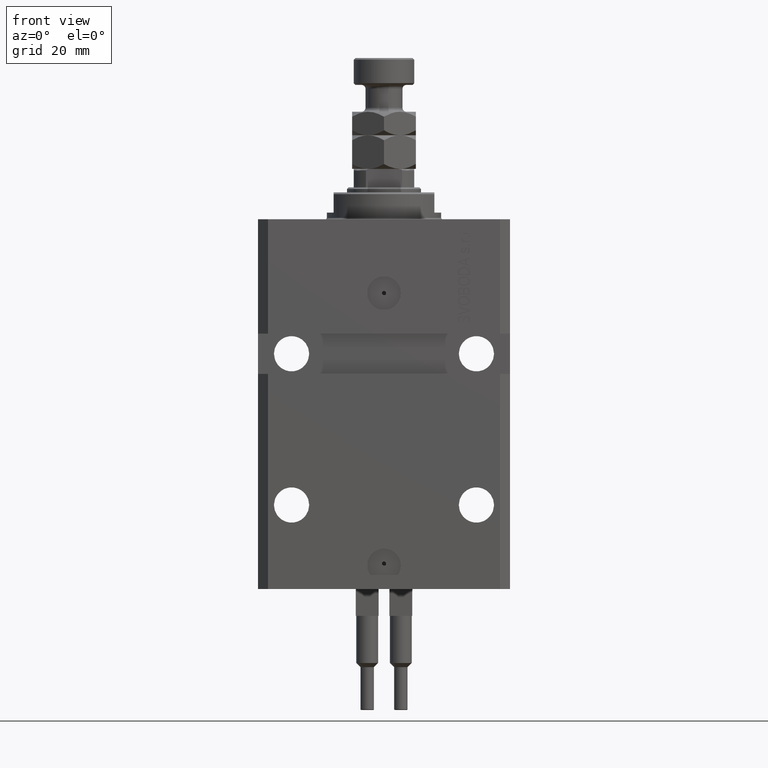
[diagram: clean part render]
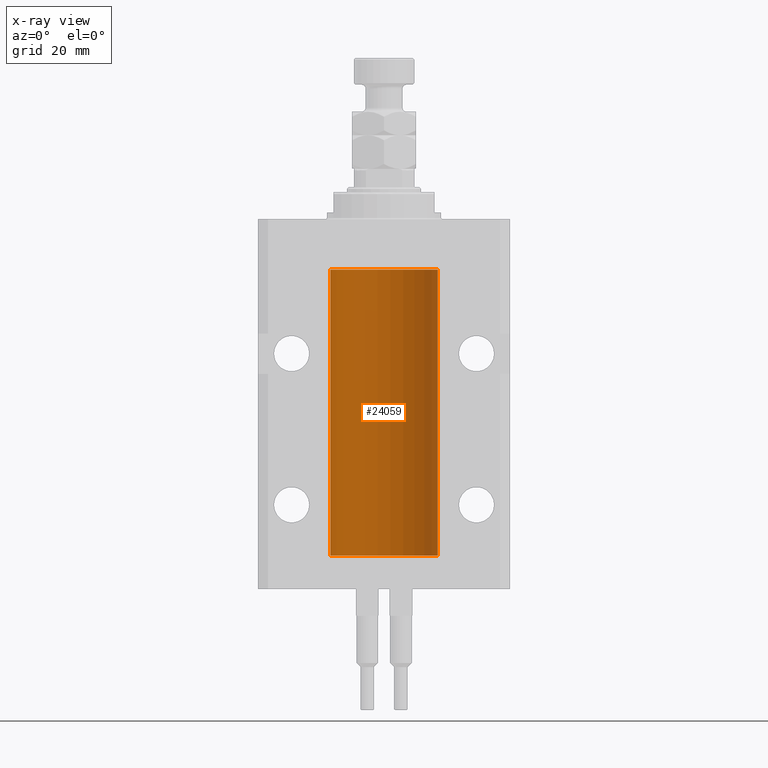
[diagram: x-ray — body ghosted, one internal face saturated and labeled with its STEP entity id]
A machine part, front view, then the same camera in x-ray: the body is ghosted and one INTERNAL B-rep face — a face not visible from any outside direction — is saturated and labeled: STEP entity #24059.
In plain terms, the highlighted cylindrical surface (partial cylindrical patch) has radius 16 mm, axis along (0, 0, 1).
Its self-contained STEP definition (entity closure, byte-faithful):
#160 = VECTOR ( 'NONE', #40299, 1000.000000000000000 ) ;
#316 = VERTEX_POINT ( 'NONE', #37630 ) ;
#538 = CARTESIAN_POINT ( 'NONE',  ( 15.98778830858101152, 0.6250000000001202372, -22.16311639173018477 ) ) ;
#617 = CARTESIAN_POINT ( 'NONE',  ( 15.98778830858104172, 0.6249999999996183053, -21.91847885046212951 ) ) ;
#1131 = LINE ( 'NONE', #4665, #48720 ) ;
#1495 = CARTESIAN_POINT ( 'NONE',  ( 16.00000000000000000, 0.000000000000000000, -100.0999999999999943 ) ) ;
#1811 = CARTESIAN_POINT ( 'NONE',  ( 16.00000000000000000, 0.000000000000000000, -15.00000000000000000 ) ) ;
#1982 = CARTESIAN_POINT ( 'NONE',  ( 16.00000000000000000, 0.000000000000000000, -100.0999999999999943 ) ) ;
#2264 = DIRECTION ( 'NONE',  ( 1.000000000000000000, 0.000000000000000000, 0.000000000000000000 ) ) ;
#2488 = CARTESIAN_POINT ( 'NONE',  ( 15.98778830858101685, 0.6250000000002223777, -98.16311639173024162 ) ) ;
#3416 = CARTESIAN_POINT ( 'NONE',  ( 15.99228275317787507, 0.5002975944204003378, -21.61642014570181303 ) ) ;
#3580 = B_SPLINE_CURVE_WITH_KNOTS ( 'NONE', 3,
 ( #46256, #617, #8193, #11476, #3416, #41992, #15246, #18771 ),
 .UNSPECIFIED., .F., .F.,
 ( 4, 2, 2, 4 ),
 ( 0.0009773326288699671956, 0.001221554802188560499, 0.001465776975507153803, 0.001954221322144333254 ),
 .UNSPECIFIED. ) ;
#4228 = ORIENTED_EDGE ( 'NONE', *, *, #39590, .F. ) ;
#4328 = CARTESIAN_POINT ( 'NONE',  ( 15.99548458234361803, 0.3844468804815583396, -22.49947786696350960 ) ) ;
#4368 = DIRECTION ( 'NONE',  ( 0.000000000000000000, 0.000000000000000000, 1.000000000000000000 ) ) ;
#4665 = CARTESIAN_POINT ( 'NONE',  ( -16.00000000000000000, 1.959434878635765131E-15, -100.0999999999999943 ) ) ;
#4689 = EDGE_CURVE ( 'NONE', #15457, #16218, #3580, .T. ) ;
#5217 = VERTEX_POINT ( 'NONE', #33536 ) ;
#5315 = CARTESIAN_POINT ( 'NONE',  ( 15.99934183755191341, 0.1636877470526788836, -22.60872690654067796 ) ) ;
#6029 = CARTESIAN_POINT ( 'NONE',  ( 15.99707608081895138, 0.3151028052310259620, -98.54594170697734512 ) ) ;
#6277 = CARTESIAN_POINT ( 'NONE',  ( 15.99934183755190986, 0.1636877470527013101, -98.60872690654072414 ) ) ;
#7011 = CARTESIAN_POINT ( 'NONE',  ( 15.99711856062700477, 0.3252985083514284281, -97.44140297987712529 ) ) ;
#7179 = AXIS2_PLACEMENT_3D ( 'NONE', #38919, #4368, #11680 ) ;
#7263 = CARTESIAN_POINT ( 'NONE',  ( 15.99228275317786441, 0.5002975944204781644, -97.61642014570176684 ) ) ;
#7792 = CARTESIAN_POINT ( 'NONE',  ( 16.00000000000000000, -1.835653844722709729E-15, -98.62500000000000000 ) ) ;
#8193 = CARTESIAN_POINT ( 'NONE',  ( 15.98844460043492077, 0.6087869699336542206, -21.83657454967558564 ) ) ;
#8298 = CARTESIAN_POINT ( 'NONE',  ( 0.000000000000000000, 0.000000000000000000, -15.00000000000000000 ) ) ;
#8513 = VECTOR ( 'NONE', #46222, 1000.000000000000000 ) ;
#9250 = CARTESIAN_POINT ( 'NONE',  ( 15.98778830858070954, 0.6250000000079481977, -21.99999999999914735 ) ) ;
#9977 = EDGE_CURVE ( 'NONE', #12073, #15457, #11652, .T. ) ;
#10064 = CARTESIAN_POINT ( 'NONE',  ( 15.98778830858070954, 0.6250000000080517815, -97.99999999999916156 ) ) ;
#10678 = VECTOR ( 'NONE', #39337, 1000.000000000000000 ) ;
#11476 = CARTESIAN_POINT ( 'NONE',  ( 15.99070695999104252, 0.5461439696926362330, -21.68526802364053552 ) ) ;
#11652 = B_SPLINE_CURVE_WITH_KNOTS ( 'NONE', 3,
 ( #39865, #31278, #5315, #20663, #4328, #35067, #538, #15910 ),
 .UNSPECIFIED., .F., .F.,
 ( 4, 2, 2, 4 ),
 ( 1.864948331951035013E-18, 0.0002443331572174913110, 0.0004886663144349807789, 0.0009773326288699671956 ),
 .UNSPECIFIED. ) ;
#11680 = DIRECTION ( 'NONE',  ( 1.000000000000000000, 0.000000000000000000, 0.000000000000000000 ) ) ;
#12073 = VERTEX_POINT ( 'NONE', #12500 ) ;
#12357 = CARTESIAN_POINT ( 'NONE',  ( 16.00000000000013145, 3.665532680419208314E-13, -21.37499999999658229 ) ) ;
#12371 = AXIS2_PLACEMENT_3D ( 'NONE', #14859, #30216, #2264 ) ;
#12500 = CARTESIAN_POINT ( 'NONE',  ( 16.00000000000000000, -7.378931128587136680E-16, -22.62500000000000000 ) ) ;
#13588 = CARTESIAN_POINT ( 'NONE',  ( 15.99548458234361448, 0.3844468804816183471, -98.49947786696355934 ) ) ;
#13872 = EDGE_CURVE ( 'NONE', #16218, #26678, #15669, .T. ) ;
#14076 = CARTESIAN_POINT ( 'NONE',  ( 16.00000000000013145, 3.665532692826917502E-13, -97.37499999999657518 ) ) ;
#14549 = B_SPLINE_CURVE_WITH_KNOTS ( 'NONE', 3,
 ( #30185, #17853, #33470, #33979, #7263, #7011, #22611, #14076 ),
 .UNSPECIFIED., .F., .F.,
 ( 4, 2, 2, 4 ),
 ( 0.0009773326288700682433, 0.001221554802188685399, 0.001465776975507302772, 0.001954221322144537518 ),
 .UNSPECIFIED. ) ;
#14859 = CARTESIAN_POINT ( 'NONE',  ( 0.000000000000000000, 0.000000000000000000, -100.0999999999999943 ) ) ;
#15189 = ORIENTED_EDGE ( 'NONE', *, *, #22297, .T. ) ;
#15246 = CARTESIAN_POINT ( 'NONE',  ( 15.99999999999999289, 0.1631343969470014366, -21.37500000000020606 ) ) ;
#15457 = VERTEX_POINT ( 'NONE', #9250 ) ;
#15669 = LINE ( 'NONE', #1982, #160 ) ;
#15910 = CARTESIAN_POINT ( 'NONE',  ( 15.98778830858070954, 0.6250000000079481977, -21.99999999999914735 ) ) ;
#16218 = VERTEX_POINT ( 'NONE', #12357 ) ;
#17853 = CARTESIAN_POINT ( 'NONE',  ( 15.98778830858103817, 0.6249999999997223332, -97.91847885046210820 ) ) ;
#18060 = CARTESIAN_POINT ( 'NONE',  ( 15.98778830858070954, 0.6250000000080517815, -97.99999999999916156 ) ) ;
#18739 = LINE ( 'NONE', #30331, #8513 ) ;
#18771 = CARTESIAN_POINT ( 'NONE',  ( 16.00000000000013145, 3.665532680419208314E-13, -21.37499999999658229 ) ) ;
#19781 = ORIENTED_EDGE ( 'NONE', *, *, #29254, .T. ) ;
#20468 = ORIENTED_EDGE ( 'NONE', *, *, #27197, .F. ) ;
#20663 = CARTESIAN_POINT ( 'NONE',  ( 15.99707608081895494, 0.3151028052309814975, -22.54594170697728117 ) ) ;
#21460 = ORIENTED_EDGE ( 'NONE', *, *, #22181, .T. ) ;
#22181 = EDGE_CURVE ( 'NONE', #29242, #44175, #23928, .T. ) ;
#22297 = EDGE_CURVE ( 'NONE', #44175, #23387, #27103, .T. ) ;
#22383 = FACE_OUTER_BOUND ( 'NONE', #40212, .T. ) ;
#22611 = CARTESIAN_POINT ( 'NONE',  ( 15.99999999999999645, 0.1631343969470158417, -97.37500000000021316 ) ) ;
#23387 = VERTEX_POINT ( 'NONE', #18060 ) ;
#23407 = DIRECTION ( 'NONE',  ( 0.000000000000000000, 0.000000000000000000, 1.000000000000000000 ) ) ;
#23928 = LINE ( 'NONE', #1495, #10678 ) ;
#24059 = ADVANCED_FACE ( 'NONE', ( #22383 ), #48894, .F. ) ;
#24144 = DIRECTION ( 'NONE',  ( 1.000000000000000000, 0.000000000000000000, 0.000000000000000000 ) ) ;
#24933 = VERTEX_POINT ( 'NONE', #43941 ) ;
#26678 = VERTEX_POINT ( 'NONE', #1811 ) ;
#27103 = B_SPLINE_CURVE_WITH_KNOTS ( 'NONE', 3,
 ( #37267, #48378, #6277, #6029, #13588, #44092, #2488, #10064 ),
 .UNSPECIFIED., .F., .F.,
 ( 4, 2, 2, 4 ),
 ( 1.783888443149829469E-18, 0.0002443331572175257886, 0.0004886663144350497342, 0.0009773326288700682433 ),
 .UNSPECIFIED. ) ;
#27197 = EDGE_CURVE ( 'NONE', #316, #5217, #1131, .T. ) ;
#28245 = EDGE_CURVE ( 'NONE', #24933, #12073, #18739, .T. ) ;
#29242 = VERTEX_POINT ( 'NONE', #33229 ) ;
#29254 = EDGE_CURVE ( 'NONE', #23387, #24933, #14549, .T. ) ;
#30029 = ORIENTED_EDGE ( 'NONE', *, *, #13872, .T. ) ;
#30185 = CARTESIAN_POINT ( 'NONE',  ( 15.98778830858070954, 0.6250000000080517815, -97.99999999999916156 ) ) ;
#30216 = DIRECTION ( 'NONE',  ( -0.000000000000000000, -0.000000000000000000, 1.000000000000000000 ) ) ;
#30331 = CARTESIAN_POINT ( 'NONE',  ( 16.00000000000000000, 0.000000000000000000, -100.0999999999999943 ) ) ;
#31278 = CARTESIAN_POINT ( 'NONE',  ( 16.00000000000000000, 0.08261762387942135633, -22.62499999999996803 ) ) ;
#31816 = ORIENTED_EDGE ( 'NONE', *, *, #9977, .T. ) ;
#33148 = CIRCLE ( 'NONE', #34760, 16.00000000000000000 ) ;
#33229 = CARTESIAN_POINT ( 'NONE',  ( 16.00000000000000000, 0.000000000000000000, -100.0999999999999943 ) ) ;
#33470 = CARTESIAN_POINT ( 'NONE',  ( 15.98844460043491367, 0.6087869699337551399, -97.83657454967556077 ) ) ;
#33536 = CARTESIAN_POINT ( 'NONE',  ( -16.00000000000000000, 1.959434878635765131E-15, -15.00000000000000000 ) ) ;
#33979 = CARTESIAN_POINT ( 'NONE',  ( 15.99070695999103542, 0.5461439696927204990, -97.68526802364048933 ) ) ;
#34760 = AXIS2_PLACEMENT_3D ( 'NONE', #8298, #23407, #24144 ) ;
#35067 = CARTESIAN_POINT ( 'NONE',  ( 15.99070366873610638, 0.5574063959866681905, -22.32639436837549596 ) ) ;
#35549 = ORIENTED_EDGE ( 'NONE', *, *, #4689, .T. ) ;
#37267 = CARTESIAN_POINT ( 'NONE',  ( 16.00000000000000000, -1.835653844722709729E-15, -98.62500000000000000 ) ) ;
#37630 = CARTESIAN_POINT ( 'NONE',  ( -16.00000000000000000, 1.959434878635765131E-15, -100.0999999999999943 ) ) ;
#38919 = CARTESIAN_POINT ( 'NONE',  ( 0.000000000000000000, 0.000000000000000000, -100.0999999999999943 ) ) ;
#39337 = DIRECTION ( 'NONE',  ( -0.000000000000000000, -0.000000000000000000, 1.000000000000000000 ) ) ;
#39460 = DIRECTION ( 'NONE',  ( -0.000000000000000000, -0.000000000000000000, 1.000000000000000000 ) ) ;
#39590 = EDGE_CURVE ( 'NONE', #29242, #316, #45819, .T. ) ;
#39865 = CARTESIAN_POINT ( 'NONE',  ( 16.00000000000000000, -7.378931128587136680E-16, -22.62500000000000000 ) ) ;
#40212 = EDGE_LOOP ( 'NONE', ( #20468, #4228, #21460, #15189, #19781, #42458, #31816, #35549, #30029, #42625 ) ) ;
#40299 = DIRECTION ( 'NONE',  ( -0.000000000000000000, -0.000000000000000000, 1.000000000000000000 ) ) ;
#41992 = CARTESIAN_POINT ( 'NONE',  ( 15.99711856062700122, 0.3252985083513916242, -21.44140297987714661 ) ) ;
#42458 = ORIENTED_EDGE ( 'NONE', *, *, #28245, .T. ) ;
#42625 = ORIENTED_EDGE ( 'NONE', *, *, #45362, .T. ) ;
#43941 = CARTESIAN_POINT ( 'NONE',  ( 16.00000000000013145, 3.665532692826917502E-13, -97.37499999999657518 ) ) ;
#44092 = CARTESIAN_POINT ( 'NONE',  ( 15.99070366873610283, 0.5574063959867601170, -98.32639436837558833 ) ) ;
#44175 = VERTEX_POINT ( 'NONE', #7792 ) ;
#45362 = EDGE_CURVE ( 'NONE', #26678, #5217, #33148, .T. ) ;
#45819 = CIRCLE ( 'NONE', #7179, 16.00000000000000000 ) ;
#46222 = DIRECTION ( 'NONE',  ( -0.000000000000000000, -0.000000000000000000, 1.000000000000000000 ) ) ;
#46256 = CARTESIAN_POINT ( 'NONE',  ( 15.98778830858070954, 0.6250000000079481977, -21.99999999999914735 ) ) ;
#48378 = CARTESIAN_POINT ( 'NONE',  ( 16.00000000000001066, 0.08261762387943044628, -98.62500000000001421 ) ) ;
#48720 = VECTOR ( 'NONE', #39460, 1000.000000000000000 ) ;
#48894 = CYLINDRICAL_SURFACE ( 'NONE', #12371, 16.00000000000000000 ) ;